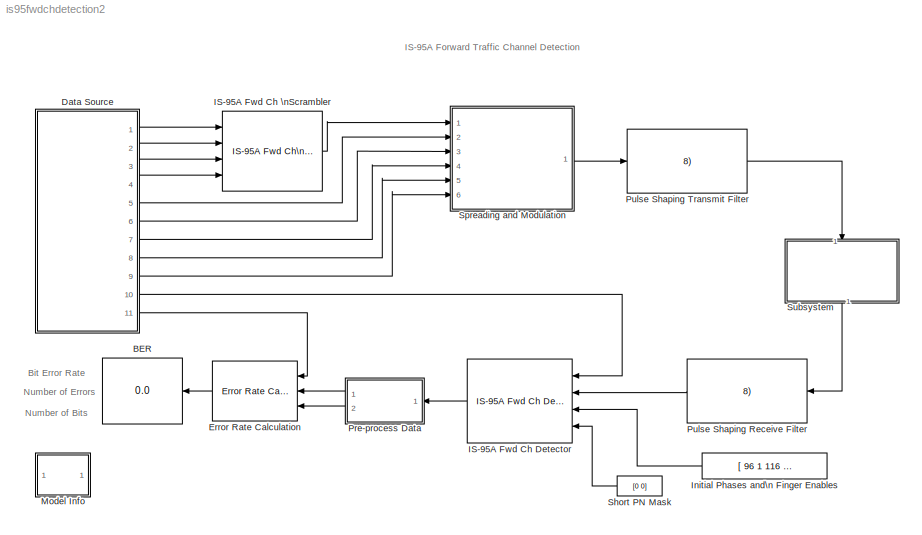
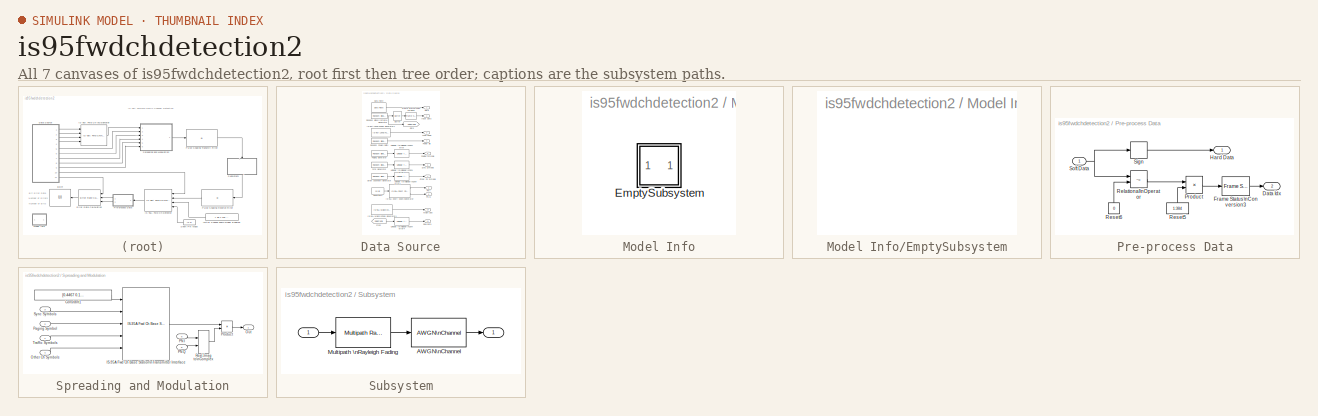
[diagram: thumbnail index - all 7 canvases of the model, root first then tree order]
MODEL is95fwdchdetection2
KIND model
CONFIG AbsTol = 1e-6
CONFIG FixedStep = auto
CONFIG MaxStep = auto
CONFIG MinStep = auto
CONFIG RelTol = 1e-3
CONFIG Solver = VariableStepDiscrete
CONFIG SolverMode = SingleTasking
CONFIG StartTime = 0.0
CONFIG StopTime = 2
BLOCK [Display] BER
  Decimation = 1
  Floating = off
  Format = short
  Ports = [1]
  SampleTime = -1
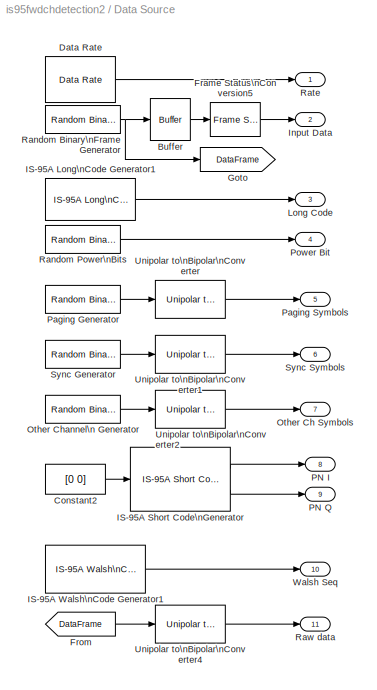
BLOCK [SubSystem] Data Source
  Ports = [0, 11]
  RTWFcnNameOpts = Auto
  RTWFileNameOpts = Auto
  RTWSystemCode = Auto
  ShowPortLabels = on
  TreatAsAtomicUnit = off
BLOCK [Reference] Data Source/Buffer  REF=dspbuff3/Buffer
  N = 1
  Ports = [1, 1]
  SourceBlock = dspbuff3/Buffer
  SourceType = Buffer
  V = 0
  ic = 0
BLOCK [Constant] Data Source/Constant2
  Value = [0 0]
  VectorParams1D = on
BLOCK [Reference] Data Source/Data Rate  REF=cdmaprivate/Data Rate  (lib defined in mdl_204704d9dd4c)
  Ports = [0, 1]
  SourceBlock = cdmaprivate/Data Rate
  SourceType = Base Station Transmitter Data Rate
  rate = Full
BLOCK [Reference] Data Source/Frame Status\nConversion5  REF=dspsigattribs/Frame Status\nConversion
  Ports = [1, 1]
  SourceBlock = dspsigattribs/Frame Status\nConversion
  SourceType = Frame Status Conversion
  growRefPort = off
  outframe = Frame-based
BLOCK [From] Data Source/From
  CloseFcn = tagdialog Close
  GotoTag = DataFrame
BLOCK [Goto] Data Source/Goto
  GotoTag = DataFrame
  TagVisibility = local
BLOCK [Reference] Data Source/IS-95A Long\nCode Generator1  REF=cdmalibv1p1/IS-95A Common/IS-95A Long\nCode Generator  (lib defined in mdl_d5ab24ac8168)
  Ports = [0, 1]
  SourceBlock = cdmalibv1p1/IS-95A Common/IS-95A Long\nCode Generator
  SourceType = IS-95A Long Code Generator
  num_symb = 1
  tx_lc_dec_ratio = 64
  tx_lc_init_mask = 2^41
  tx_lc_init_state = 2^41
  tx_sample_time = 1/(50*384)
BLOCK [Reference] Data Source/IS-95A Short Code\nGenerator  REF=cdmalibv1p1/IS-95A Common/IS-95A Short Code\nGenerator  (lib defined in mdl_d5ab24ac8168)
  Ports = [1, 2]
  SourceBlock = cdmalibv1p1/IS-95A Common/IS-95A Short Code\nGenerator
  SourceType = IS-95A Short Code Generator
  numOut = 64
  sampTime = 1/(50*384)
BLOCK [Reference] Data Source/IS-95A Walsh\nCode Generator1  REF=cdmalibv1p1/IS-95A Common/IS-95A Walsh\nCode Generator  (lib defined in mdl_d5ab24ac8168)
  Ports = [0, 1]
  SourceBlock = cdmalibv1p1/IS-95A Common/IS-95A Walsh\nCode Generator
  SourceType = IS-95A Walsh Code Generator
  st = 1/(50*384)
  wlshIndices = 38
  wlshOrd = 6
BLOCK [Outport] Data Source/Input Data
  InitialOutput = 0
  OutputWhenDisabled = held
  Port = 2
BLOCK [Outport] Data Source/Long Code
  InitialOutput = 0
  OutputWhenDisabled = held
  Port = 3
BLOCK [Outport] Data Source/Other Ch Symbols
  InitialOutput = 0
  OutputWhenDisabled = held
  Port = 7
BLOCK [Reference] Data Source/Other Channel\n Generator  REF=cdmaprivate/Random Binary\nFrame Generator  (lib defined in mdl_204704d9dd4c)
  N = 1
  Ports = [0, 1]
  SourceBlock = cdmaprivate/Random Binary\nFrame Generator
  SourceType = Random Binary Frame Generator
  Ts = 1/(50*384)
  seed = 98767657
BLOCK [Outport] Data Source/PN I
  InitialOutput = 0
  OutputWhenDisabled = held
  Port = 8
BLOCK [Outport] Data Source/PN Q
  InitialOutput = 0
  OutputWhenDisabled = held
  Port = 9
BLOCK [Reference] Data Source/Paging Generator  REF=cdmaprivate/Random Binary\nFrame Generator  (lib defined in mdl_204704d9dd4c)
  N = 1
  Ports = [0, 1]
  SourceBlock = cdmaprivate/Random Binary\nFrame Generator
  SourceType = Random Binary Frame Generator
  Ts = 1/(50*384)
  seed = 76767
BLOCK [Outport] Data Source/Paging Symbols
  InitialOutput = 0
  OutputWhenDisabled = held
  Port = 5
BLOCK [Outport] Data Source/Power Bit
  InitialOutput = 0
  OutputWhenDisabled = held
  Port = 4
BLOCK [Reference] Data Source/Random Binary\nFrame Generator  REF=cdmaprivate/Random Binary\nFrame Generator  (lib defined in mdl_204704d9dd4c)
  N = 384
  Ports = [0, 1]
  SourceBlock = cdmaprivate/Random Binary\nFrame Generator
  SourceType = Random Binary Frame Generator
  Ts = 1/(50*384)
  seed = 8514519
BLOCK [Reference] Data Source/Random Power\nBits  REF=cdmaprivate/Random Binary\nFrame Generator  (lib defined in mdl_204704d9dd4c)
  N = 1
  Ports = [0, 1]
  SourceBlock = cdmaprivate/Random Binary\nFrame Generator
  SourceType = Random Binary Frame Generator
  Ts = 1/(50*16)
  seed = 8514519
BLOCK [Outport] Data Source/Rate
  InitialOutput = 0
  OutputWhenDisabled = held
  Port = 1
BLOCK [Outport] Data Source/Raw data
  InitialOutput = 0
  OutputWhenDisabled = held
  Port = 11
BLOCK [Reference] Data Source/Sync Generator  REF=cdmaprivate/Random Binary\nFrame Generator  (lib defined in mdl_204704d9dd4c)
  N = 1
  Ports = [0, 1]
  SourceBlock = cdmaprivate/Random Binary\nFrame Generator
  SourceType = Random Binary Frame Generator
  Ts = 4 * 1/(50*384)
  seed = 465789
BLOCK [Outport] Data Source/Sync Symbols
  InitialOutput = 0
  OutputWhenDisabled = held
  Port = 6
BLOCK [Reference] Data Source/Unipolar to\nBipolar\nConverter  REF=commutil2/Unipolar to\nBipolar\nConverter
  M = 2
  Ports = [1, 1]
  SourceBlock = commutil2/Unipolar to\nBipolar\nConverter
  SourceType = Unipolar to Bipolar Converter
  polarity = Negative
BLOCK [Reference] Data Source/Unipolar to\nBipolar\nConverter1  REF=commutil2/Unipolar to\nBipolar\nConverter
  M = 2
  Ports = [1, 1]
  SourceBlock = commutil2/Unipolar to\nBipolar\nConverter
  SourceType = Unipolar to Bipolar Converter
  polarity = Negative
BLOCK [Reference] Data Source/Unipolar to\nBipolar\nConverter2  REF=commutil2/Unipolar to\nBipolar\nConverter
  M = 2
  Ports = [1, 1]
  SourceBlock = commutil2/Unipolar to\nBipolar\nConverter
  SourceType = Unipolar to Bipolar Converter
  polarity = Negative
BLOCK [Reference] Data Source/Unipolar to\nBipolar\nConverter4  REF=commutil2/Unipolar to\nBipolar\nConverter
  M = 2
  Ports = [1, 1]
  SourceBlock = commutil2/Unipolar to\nBipolar\nConverter
  SourceType = Unipolar to Bipolar Converter
  polarity = Negative
BLOCK [Outport] Data Source/Walsh Seq
  InitialOutput = 0
  OutputWhenDisabled = held
  Port = 10
BLOCK [Reference] Error Rate Calculation  REF=commsink2/Error Rate Calculation
  N = 2*384
  PMode = Port
  Ports = [3, 1]
  RsMode2 = off
  SourceBlock = commsink2/Error Rate Calculation
  SourceType = Error Rate Calculation
  WsName = ErrorVec
  cp_mode = Select samples from port
  st_delay = 2*384
  subframe = []
BLOCK [Reference] IS-95A Fwd Ch Detector  REF=cdmalibv1p1/IS-95A Mobile Station Receiver/IS-95A Fwd Ch Detector  (lib defined in mdl_d5ab24ac8168)
  Ports = [4, 1]
  SourceBlock = cdmalibv1p1/IS-95A Mobile Station Receiver/IS-95A Fwd Ch Detector
  SourceType = IS-95A Fwd Ch Detector
  numSymb = 1
  rake_buff_size = 3
  rake_oversamp = 8
  rateSet = Rate Set I
  sampTime = 1/(50*384)
  wlshOrd = 6
BLOCK [Reference] IS-95A Fwd Ch \nScrambler  REF=cdmalibv1p1/IS-95A Base Station Transmitter/IS-95A Fwd Ch\nScrambler  (lib defined in mdl_d5ab24ac8168)
  Ports = [4, 1]
  SourceBlock = cdmalibv1p1/IS-95A Base Station Transmitter/IS-95A Fwd Ch\nScrambler
  SourceType = IS-95A Fwd Ch Scrambler
  chType = Traffic
  rate_set = Rate Set I
BLOCK [Constant] Initial Phases and\n Finger Enables
  Value = [ 96 1 116 1 239 1 0 0]
  VectorParams1D = on
BLOCK [SubSystem] Model Info
  CopyFcn = slcm CopyBlock;
  DeleteFcn = slcm Cancel;
  InitFcn = slcm('UpdateAllCMBlocksInThisModelInit')
  LoadFcn = slcm LoadBlock;
  MaskCallbackString = ||||||||||||||||||||||||||||||
  MaskDescription = This block allows revision control information to be displayed within the model.
  MaskDisplay = text(str2num(LeftAlignmentValue), 0.5, MaskDisplayString, 'HorizontalAlignment', HorizontalTextAlignment)\n
  MaskEnableString = on,on,on,on,on,on,on,on,on,on,on,on,on,on,on,on,on,on,on,on,on,on,on,on,on,on,on,on,on,on,on
  MaskIconFrame = on
  MaskIconOpaque = on
  MaskIconRotate = none
  MaskIconUnits = normalized
  MaskPromptString = InitialSaveTempField|InitialBlockCM|BlockCM|Frame|SaveTempField|DisplayStringWithTags|MaskDisplayString|HorizontalTextAlignment|LeftAlignmentValue|SourceBlockDiagram|TagMaxNumber|CMTag1|CMTag2|CMTag3|CMTag4|CMTag5|CMTag6|CMTag7|CMTag8|CMTag9|CMTag10|CMTag11|CMTag12|CMTag13|CMTag14|CMTag15|CMTag16|CMTag17|CMTag18|CMTag19|CMTag20
  MaskSelfModifiable = on
  MaskStyleString = edit,edit,edit,edit,edit,edit,edit,edit,edit,edit,edit,edit,edit,edit,edit,edit,edit,edit,edit,edit,edit,edit,edit,edit,edit,edit,edit,edit,edit,edit,edit
  MaskToolTipString = on,on,on,on,on,on,on,on,on,on,on,on,on,on,on,on,on,on,on,on,on,on,on,on,on,on,on,on,on,on,on
  MaskTunableValueString = on,on,on,on,on,on,on,on,on,on,on,on,on,on,on,on,on,on,on,on,on,on,on,on,on,on,on,on,on,on,on
  MaskType = CMBlock
  MaskValueString = |none|none|on||Info|Info|Center|0.5|is95fwdchdetection2|20||||||||||||||||||||
  MaskVariableAliases = ,,,,,,,,,,,,,,,,,,,,,,,,,,,,,,
  MaskVariables = InitialSaveTempField=&1;InitialBlockCM=&2;BlockCM=&3;Frame=&4;SaveTempField=&5;DisplayStringWithTags=&6;MaskDisplayString=&7;HorizontalTextAlignment=&8;LeftAlignmentValue=&9;SourceBlockDiagram=&10;TagMaxNumber=@11;CMTag1=&12;CMTag2=&13;CMTag3=&14;CMTag4=&15;CMTag5=&16;CMTag6=&17;CMTag7=&18;CMTag8=&19;CMTag9=&20;CMTag10=&21;CMTag11=&22;CMTag12=&23;CMTag13=&24;CMTag14=&25;CMTag15=&26;CMTag16=&27;CMT...<+45ch>
  MaskVisibilityString = off,off,off,off,off,off,off,off,off,off,off,off,off,off,off,off,off,off,off,off,off,off,off,off,off,off,off,off,off,off,off
  NameChangeFcn = slcm Rename;
  OpenFcn = cdmademohelp;
  Ports = []
  PostSaveFcn = slcm('UpdateAllCMBlocksInThisModel')
  RTWFcnNameOpts = Auto
  RTWFileNameOpts = Auto
  RTWSystemCode = Auto
  ShowPortLabels = on
  TreatAsAtomicUnit = off
BLOCK [SubSystem] Model Info/EmptySubsystem
  Ports = []
  RTWFcnNameOpts = Auto
  RTWFileNameOpts = Auto
  RTWSystemCode = Auto
  ShowPortLabels = on
  TreatAsAtomicUnit = off
BLOCK [SubSystem] Pre-process Data
  Ports = [1, 2]
  RTWFcnNameOpts = Auto
  RTWFileNameOpts = Auto
  RTWSystemCode = Auto
  ShowPortLabels = on
  TreatAsAtomicUnit = off
BLOCK [Outport] Pre-process Data/Data Idx
  InitialOutput = []
  OutputWhenDisabled = held
  Port = 2
BLOCK [Reference] Pre-process Data/Frame Status\nConversion3  REF=dspsigattribs/Frame Status\nConversion
  Ports = [1, 1]
  SourceBlock = dspsigattribs/Frame Status\nConversion
  SourceType = Frame Status Conversion
  growRefPort = off
  outframe = Sample-based
BLOCK [Outport] Pre-process Data/Hard Data
  InitialOutput = []
  OutputWhenDisabled = held
  Port = 1
BLOCK [Product] Pre-process Data/Product
  Inputs = 2
  Multiplication = Element-wise(.*)
  Ports = [2, 1]
  SaturateOnIntegerOverflow = on
BLOCK [RelationalOperator] Pre-process Data/Relational\nOperator
  Operator = ~=
BLOCK [Constant] Pre-process Data/Reset5
  Value = 1:384
  VectorParams1D = on
BLOCK [Constant] Pre-process Data/Reset6
  Value = 0
  VectorParams1D = on
BLOCK [Signum] Pre-process Data/Sign
BLOCK [Inport] Pre-process Data/Soft Data
  Interpolate = on
  Port = 1
BLOCK [Reference] Pulse Shaping Receive Filter  REF=cdmaprivate/Pulse Shaping Filter\n(h//8)  (lib defined in mdl_204704d9dd4c)
  N = 1
  Ports = [1, 1]
  SourceBlock = cdmaprivate/Pulse Shaping Filter\n(h//8)
  SourceType = FIR Pulse Shaping Filter
BLOCK [Reference] Pulse Shaping Transmit Filter  REF=cdmaprivate/Pulse Shaping Filter\n(h//8)  (lib defined in mdl_204704d9dd4c)
  N = 8
  Ports = [1, 1]
  SourceBlock = cdmaprivate/Pulse Shaping Filter\n(h//8)
  SourceType = FIR Pulse Shaping Filter
BLOCK [Constant] Short PN Mask
  Value = [0 0]
  VectorParams1D = on
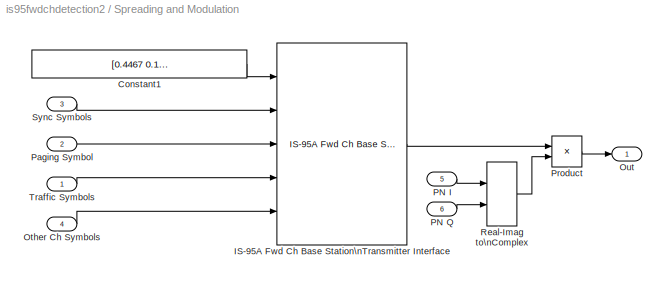
BLOCK [SubSystem] Spreading and Modulation
  Ports = [6, 1]
  RTWFcnNameOpts = Auto
  RTWFileNameOpts = Auto
  RTWSystemCode = Auto
  ShowPortLabels = on
  TreatAsAtomicUnit = off
BLOCK [Constant] Spreading and Modulation/Constant1
  Value = [0.4467 0.1585 0.1585 0.1622 0.8509]
  VectorParams1D = on
BLOCK [Reference] Spreading and Modulation/IS-95A Fwd Ch Base Station\nTransmitter Interface  REF=cdmalibv1p1/IS-95A Base Station Transmitter/IS-95A Fwd Ch Base Station\nTransmitter Interface  (lib defined in mdl_d5ab24ac8168)
  Ports = [5, 1]
  SourceBlock = cdmalibv1p1/IS-95A Base Station Transmitter/IS-95A Fwd Ch Base Station\nTransmitter Interface
  SourceType = IS-95A Fwd Ch Base Station Transmitter Interface
  paging_rate = Full
  sampTime = 1/(50*384)
  wlshOrd = 6
  wlsh_indices = [0 32 47 38 23]
BLOCK [Inport] Spreading and Modulation/Other Ch Symbols
  Interpolate = on
  Port = 4
BLOCK [Outport] Spreading and Modulation/Out 
  InitialOutput = 0
  OutputWhenDisabled = held
  Port = 1
BLOCK [Inport] Spreading and Modulation/PN I
  Interpolate = on
  Port = 5
BLOCK [Inport] Spreading and Modulation/PN Q
  Interpolate = on
  Port = 6
BLOCK [Inport] Spreading and Modulation/Paging Symbol
  Interpolate = on
  Port = 2
BLOCK [Product] Spreading and Modulation/Product
  Inputs = 2
  Multiplication = Element-wise(.*)
  Ports = [2, 1]
  SaturateOnIntegerOverflow = on
BLOCK [RealImagToComplex] Spreading and Modulation/Real-Imag to\nComplex
  ConstantPart = 0
  Input = RealAndImag
  Ports = [2, 1]
BLOCK [Inport] Spreading and Modulation/Sync Symbols
  Interpolate = on
  Port = 3
BLOCK [Inport] Spreading and Modulation/Traffic Symbols
  Interpolate = on
  Port = 1
BLOCK [SubSystem] Subsystem
  MaskDisplay = disp('Rayleigh Multipath\\n and  AWGN\\nChannel')
  MaskIconFrame = on
  MaskIconOpaque = on
  MaskIconRotate = none
  MaskIconUnits = autoscale
  Ports = [1, 1]
  RTWFcnNameOpts = Auto
  RTWFileNameOpts = Auto
  RTWSystemCode = Auto
  ShowPortLabels = on
  TreatAsAtomicUnit = off
BLOCK [Inport] Subsystem/ 
  Interpolate = on
  Port = 1
BLOCK [Outport] Subsystem/  
  InitialOutput = []
  OutputWhenDisabled = held
  Port = 1
BLOCK [Reference] Subsystem/AWGN\nChannel  REF=commchan2/AWGN\nChannel
  EsNodB = 12
  Ports = [1, 1]
  Ps = 2
  SNRdB = 10
  SourceBlock = commchan2/AWGN\nChannel
  SourceType = AWGN Channel
  Tsym = 1/1228800
  noiseMode = Signal to noise ratio  (Es/No)
  seed = 123456
  variance = 1
BLOCK [Reference] Subsystem/Multipath \nRayleigh Fading   REF=commchan2/Multipath Rayleigh\nFading Channel
  Fd = 175.92
  Ports = [1, 1]
  Seed = 83102
  SourceBlock = commchan2/Multipath Rayleigh\nFading Channel
  SourceType = Multipath Rayleigh Fading Channel
  delayVec = [0 2e-6 14.5e-6]
  gainVecdB = [0 0 -3]
  normGain = on
  simTs = 1/(1228800*8)
LINE Data Source/Buffer:1 -> Data Source/Frame Status\nConversion5:1
LINE Data Source/Constant2:1 -> Data Source/IS-95A Short Code\nGenerator:1
LINE Data Source/Data Rate:1 -> Data Source/Rate:1
LINE Data Source/Frame Status\nConversion5:1 -> Data Source/Input Data:1
LINE Data Source/From:1 -> Data Source/Unipolar to\nBipolar\nConverter4:1
LINE Data Source/IS-95A Long\nCode Generator1:1 -> Data Source/Long Code:1
LINE Data Source/IS-95A Short Code\nGenerator:1 -> Data Source/PN I:1
LINE Data Source/IS-95A Short Code\nGenerator:2 -> Data Source/PN Q:1
LINE Data Source/IS-95A Walsh\nCode Generator1:1 -> Data Source/Walsh Seq:1
LINE Data Source/Other Channel\n Generator:1 -> Data Source/Unipolar to\nBipolar\nConverter2:1
LINE Data Source/Paging Generator:1 -> Data Source/Unipolar to\nBipolar\nConverter:1
NET Data Source/Random Binary\nFrame Generator:1 -> Data Source/Buffer:1, Data Source/Goto:1
LINE Data Source/Random Power\nBits:1 -> Data Source/Power Bit:1
LINE Data Source/Sync Generator:1 -> Data Source/Unipolar to\nBipolar\nConverter1:1
LINE Data Source/Unipolar to\nBipolar\nConverter1:1 -> Data Source/Sync Symbols:1
LINE Data Source/Unipolar to\nBipolar\nConverter2:1 -> Data Source/Other Ch Symbols:1
LINE Data Source/Unipolar to\nBipolar\nConverter4:1 -> Data Source/Raw data:1
LINE Data Source/Unipolar to\nBipolar\nConverter:1 -> Data Source/Paging Symbols:1
LINE Data Source:1 -> IS-95A Fwd Ch \nScrambler:1
LINE Data Source:10 -> IS-95A Fwd Ch Detector:1
LINE Data Source:11 -> Error Rate Calculation:1
LINE Data Source:2 -> IS-95A Fwd Ch \nScrambler:2
LINE Data Source:3 -> IS-95A Fwd Ch \nScrambler:3
LINE Data Source:4 -> IS-95A Fwd Ch \nScrambler:4
LINE Data Source:5 -> Spreading and Modulation:2
LINE Data Source:6 -> Spreading and Modulation:3
LINE Data Source:7 -> Spreading and Modulation:4
LINE Data Source:8 -> Spreading and Modulation:5
LINE Data Source:9 -> Spreading and Modulation:6
LINE Error Rate Calculation:1 -> BER:1
LINE IS-95A Fwd Ch Detector:1 -> Pre-process Data:1
LINE IS-95A Fwd Ch \nScrambler:1 -> Spreading and Modulation:1
LINE Initial Phases and\n Finger Enables:1 -> IS-95A Fwd Ch Detector:3
LINE Pre-process Data/Frame Status\nConversion3:1 -> Pre-process Data/Data Idx:1
LINE Pre-process Data/Product:1 -> Pre-process Data/Frame Status\nConversion3:1
LINE Pre-process Data/Relational\nOperator:1 -> Pre-process Data/Product:1
LINE Pre-process Data/Reset5:1 -> Pre-process Data/Product:2
LINE Pre-process Data/Reset6:1 -> Pre-process Data/Relational\nOperator:2
LINE Pre-process Data/Sign:1 -> Pre-process Data/Hard Data:1
NET Pre-process Data/Soft Data:1 -> Pre-process Data/Relational\nOperator:1, Pre-process Data/Sign:1
LINE Pre-process Data:1 -> Error Rate Calculation:2
LINE Pre-process Data:2 -> Error Rate Calculation:3
LINE Pulse Shaping Receive Filter:1 -> IS-95A Fwd Ch Detector:2
LINE Pulse Shaping Transmit Filter:1 -> Subsystem:1
LINE Short PN Mask:1 -> IS-95A Fwd Ch Detector:4
LINE Spreading and Modulation/Constant1:1 -> Spreading and Modulation/IS-95A Fwd Ch Base Station\nTransmitter Interface:1
LINE Spreading and Modulation/IS-95A Fwd Ch Base Station\nTransmitter Interface:1 -> Spreading and Modulation/Product:1
LINE Spreading and Modulation/Other Ch Symbols:1 -> Spreading and Modulation/IS-95A Fwd Ch Base Station\nTransmitter Interface:5
LINE Spreading and Modulation/PN I:1 -> Spreading and Modulation/Real-Imag to\nComplex:1
LINE Spreading and Modulation/PN Q:1 -> Spreading and Modulation/Real-Imag to\nComplex:2
LINE Spreading and Modulation/Paging Symbol:1 -> Spreading and Modulation/IS-95A Fwd Ch Base Station\nTransmitter Interface:3
LINE Spreading and Modulation/Product:1 -> Spreading and Modulation/Out :1
LINE Spreading and Modulation/Real-Imag to\nComplex:1 -> Spreading and Modulation/Product:2
LINE Spreading and Modulation/Sync Symbols:1 -> Spreading and Modulation/IS-95A Fwd Ch Base Station\nTransmitter Interface:2
LINE Spreading and Modulation/Traffic Symbols:1 -> Spreading and Modulation/IS-95A Fwd Ch Base Station\nTransmitter Interface:4
LINE Spreading and Modulation:1 -> Pulse Shaping Transmit Filter:1
LINE Subsystem/ :1 -> Subsystem/Multipath \nRayleigh Fading :1
LINE Subsystem/AWGN\nChannel:1 -> Subsystem/  :1
LINE Subsystem/Multipath \nRayleigh Fading :1 -> Subsystem/AWGN\nChannel:1
LINE Subsystem:1 -> Pulse Shaping Receive Filter:1
note: NET lines group one-source signal fan-out (src -> all destinations, sorted); 1:1 wires keep LINE
